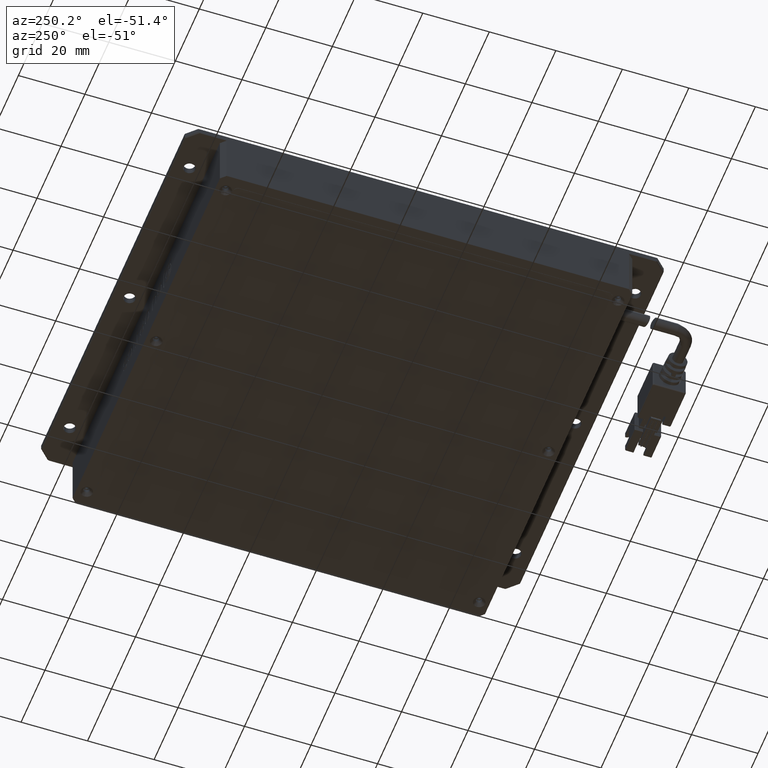
[diagram: clean part render]
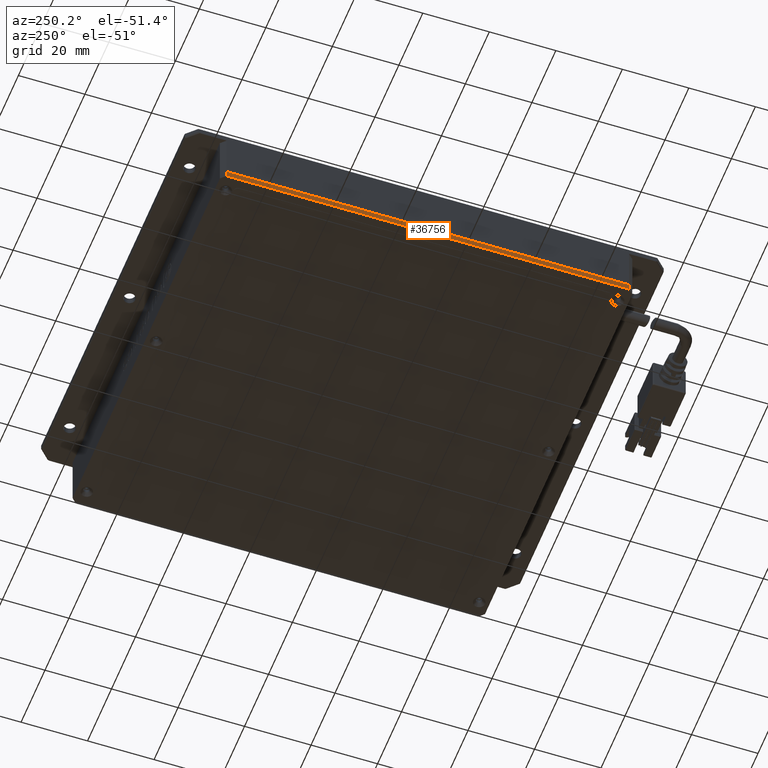
[diagram: same view with one face highlighted and labeled with its STEP entity id]
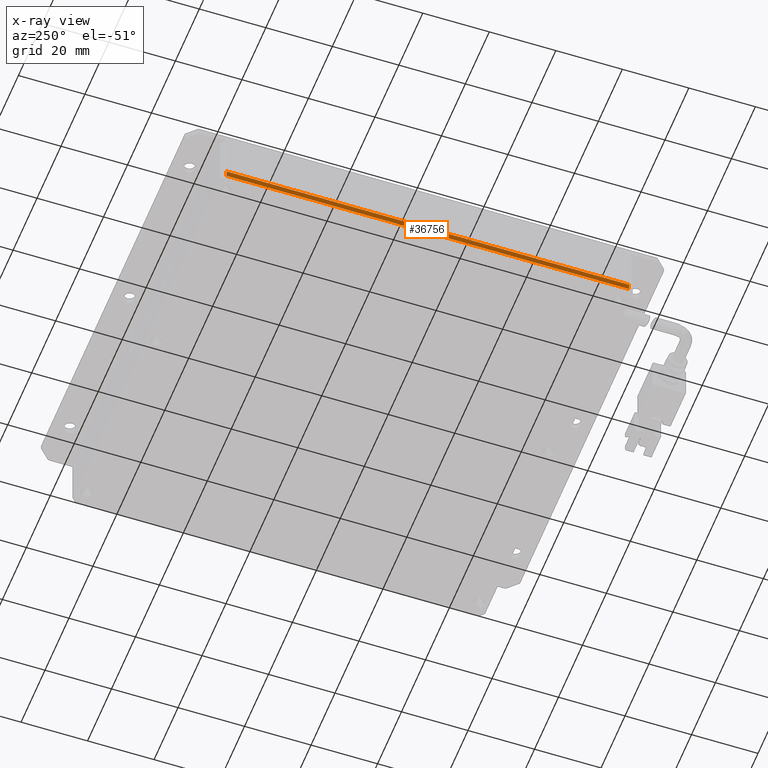
[diagram: x-ray of the same camera — body ghosted, the highlighted face saturated]
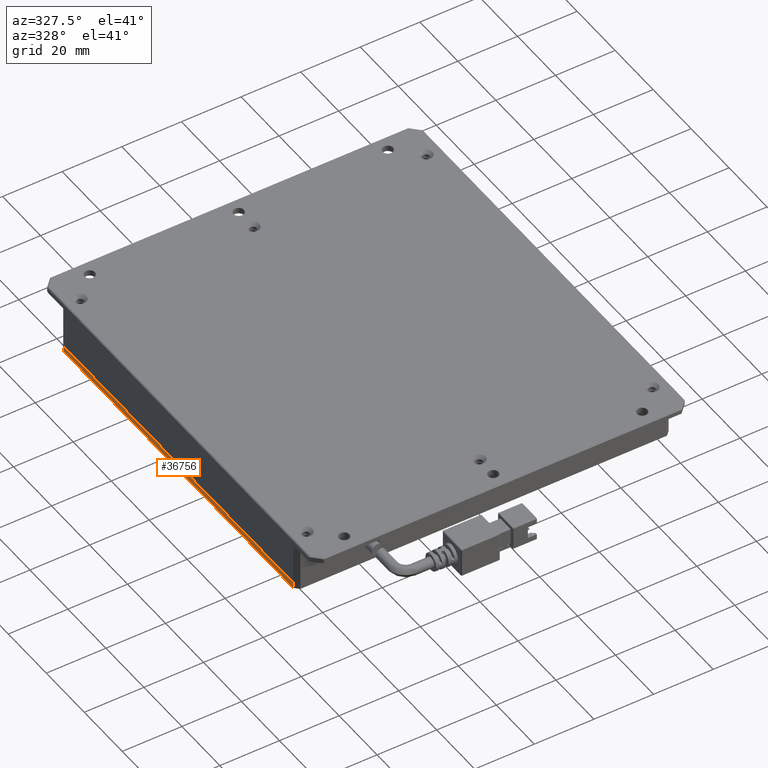
[diagram: same view with one face highlighted and labeled with its STEP entity id]
A machine part, auxiliary view. The second image highlights one B-rep face of the part: STEP entity #36756.
The next image is the same camera in x-ray: the body ghosted, the highlighted face saturated — about 0% of this face is hidden behind the body in this view.
A second angle (auxiliary view) of the same face is appended — the face is thin or edge-on in the first view.
In plain terms, the highlighted planar face has unit normal (1, -0, 0).
Its self-contained STEP definition (entity closure, byte-faithful):
#301 = CARTESIAN_POINT ( 'NONE',  ( -63.35509736540663500, 71.38965253913708900, -1.637058544279312900E-011 ) ) ;
#3188 = ORIENTED_EDGE ( 'NONE', *, *, #91372, .F. ) ;
#3916 = ORIENTED_EDGE ( 'NONE', *, *, #93153, .F. ) ;
#8637 = EDGE_CURVE ( 'NONE', #24466, #76504, #16236, .T. ) ;
#12083 = VECTOR ( 'NONE', #80214, 1000.000000000000000 ) ;
#13421 = DIRECTION ( 'NONE',  ( 1.000000000000000000, -2.220446049250313100E-016, 0.0000000000000000000 ) ) ;
#15550 = LINE ( 'NONE', #38080, #33830 ) ;
#16134 = DIRECTION ( 'NONE',  ( -0.0000000000000000000, -0.0000000000000000000, 1.000000000000000000 ) ) ;
#16236 = LINE ( 'NONE', #39359, #55328 ) ;
#18438 = ORIENTED_EDGE ( 'NONE', *, *, #91780, .F. ) ;
#24466 = VERTEX_POINT ( 'NONE', #28358 ) ;
#25605 = AXIS2_PLACEMENT_3D ( 'NONE', #60209, #13421, #68081 ) ;
#28358 = CARTESIAN_POINT ( 'NONE',  ( -63.35509736540666400, -49.61034746086287600, -2.000000000016370500 ) ) ;
#30390 = VECTOR ( 'NONE', #64786, 1000.000000000000000 ) ;
#33830 = VECTOR ( 'NONE', #85956, 1000.000000000000000 ) ;
#36756 = ADVANCED_FACE ( 'NONE', ( #95861 ), #83157, .F. ) ;
#37966 = VERTEX_POINT ( 'NONE', #44790 ) ;
#38080 = CARTESIAN_POINT ( 'NONE',  ( -63.35509736540663500, 71.38965253913708900, -2.000000000016370500 ) ) ;
#39359 = CARTESIAN_POINT ( 'NONE',  ( -63.35509736540666400, -49.61034746086286900, -2.000000000016370500 ) ) ;
#41192 = CARTESIAN_POINT ( 'NONE',  ( -63.35509736540666400, -51.11034746086286900, -2.000000000016370500 ) ) ;
#44790 = CARTESIAN_POINT ( 'NONE',  ( -63.35509736540663500, 71.38965253913708900, -2.000000000016370500 ) ) ;
#50764 = VERTEX_POINT ( 'NONE', #301 ) ;
#51164 = LINE ( 'NONE', #56607, #12083 ) ;
#55328 = VECTOR ( 'NONE', #16134, 1000.000000000000000 ) ;
#55633 = EDGE_LOOP ( 'NONE', ( #18438, #3916, #57073, #3188 ) ) ;
#56607 = CARTESIAN_POINT ( 'NONE',  ( -63.35509736540663500, 72.88965253913711700, -1.637058544279312900E-011 ) ) ;
#57073 = ORIENTED_EDGE ( 'NONE', *, *, #8637, .T. ) ;
#60209 = CARTESIAN_POINT ( 'NONE',  ( -63.35509736540666400, -51.11034746086286900, -2.000000000016370500 ) ) ;
#64786 = DIRECTION ( 'NONE',  ( 2.220446049250313100E-016, 1.000000000000000000, 0.0000000000000000000 ) ) ;
#68081 = DIRECTION ( 'NONE',  ( 0.0000000000000000000, 0.0000000000000000000, -1.000000000000000000 ) ) ;
#74454 = LINE ( 'NONE', #41192, #30390 ) ;
#76504 = VERTEX_POINT ( 'NONE', #84770 ) ;
#80214 = DIRECTION ( 'NONE',  ( -2.220446049250313100E-016, -1.000000000000000000, -0.0000000000000000000 ) ) ;
#83157 = PLANE ( 'NONE',  #25605 ) ;
#84770 = CARTESIAN_POINT ( 'NONE',  ( -63.35509736540666400, -49.61034746086285500, -1.637036860235863100E-011 ) ) ;
#85956 = DIRECTION ( 'NONE',  ( -0.0000000000000000000, -0.0000000000000000000, 1.000000000000000000 ) ) ;
#91372 = EDGE_CURVE ( 'NONE', #50764, #76504, #51164, .T. ) ;
#91780 = EDGE_CURVE ( 'NONE', #37966, #50764, #15550, .T. ) ;
#93153 = EDGE_CURVE ( 'NONE', #24466, #37966, #74454, .T. ) ;
#95861 = FACE_OUTER_BOUND ( 'NONE', #55633, .T. ) ;